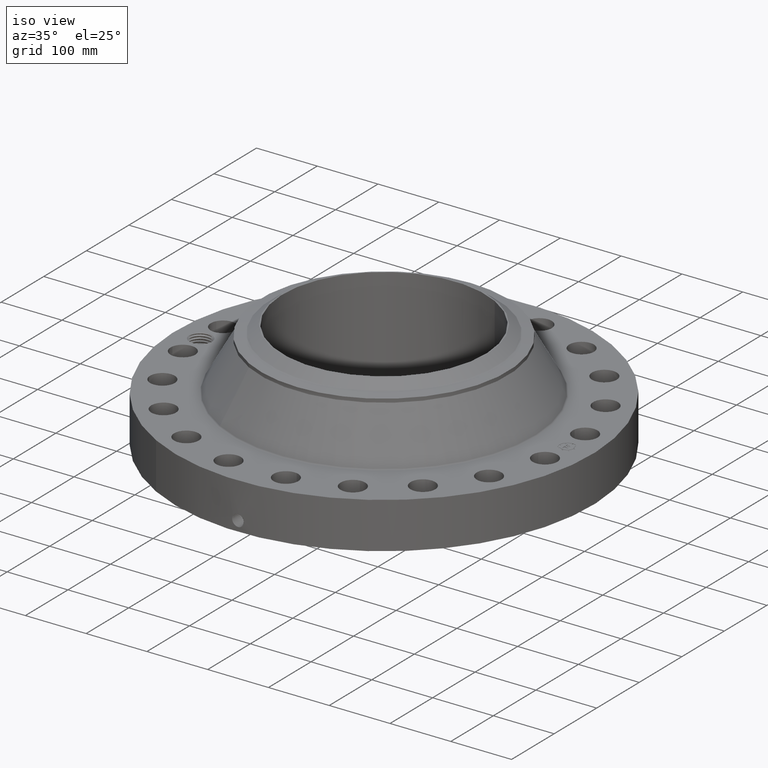
[diagram: clean part render]
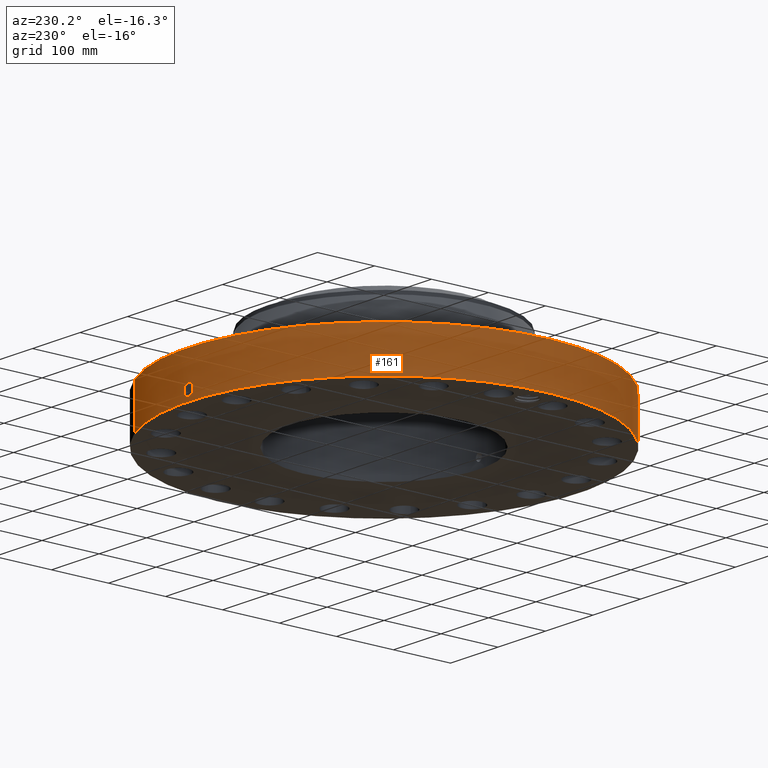
[diagram: tour spotlight — one face highlighted and labeled with its STEP entity id]
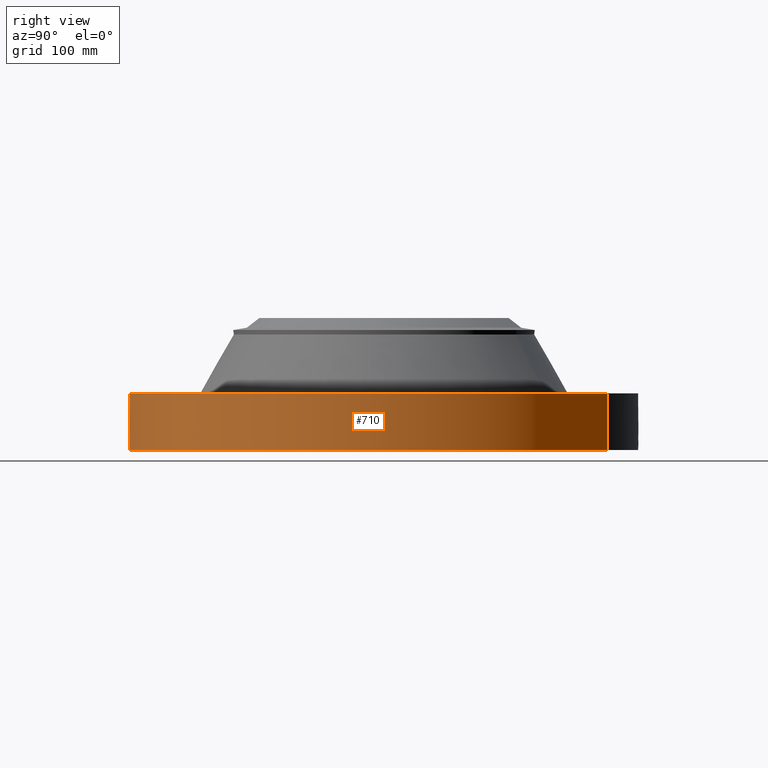
[diagram: tour spotlight — one face highlighted and labeled with its STEP entity id]
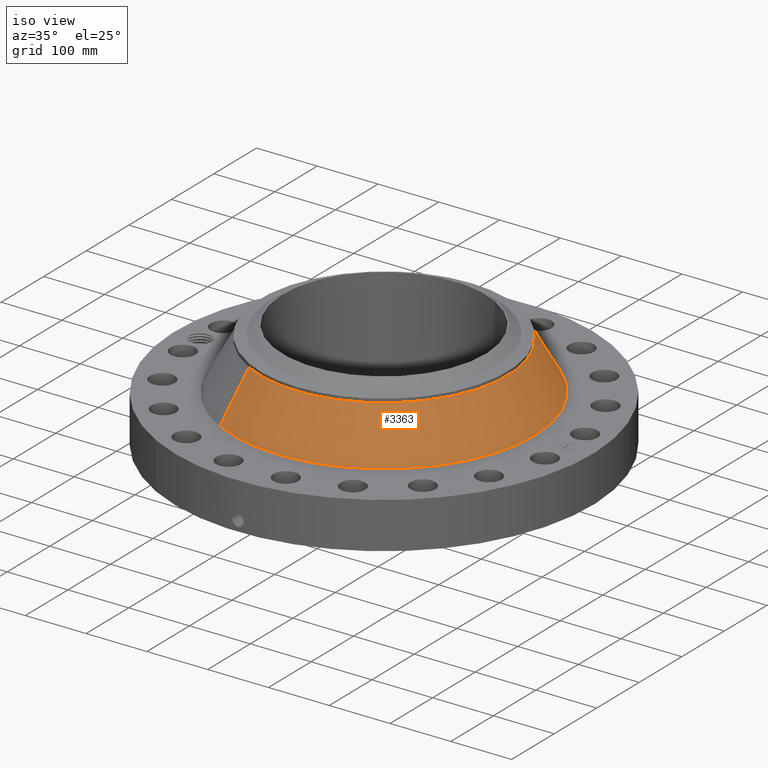
[diagram: tour spotlight — one face highlighted and labeled with its STEP entity id]
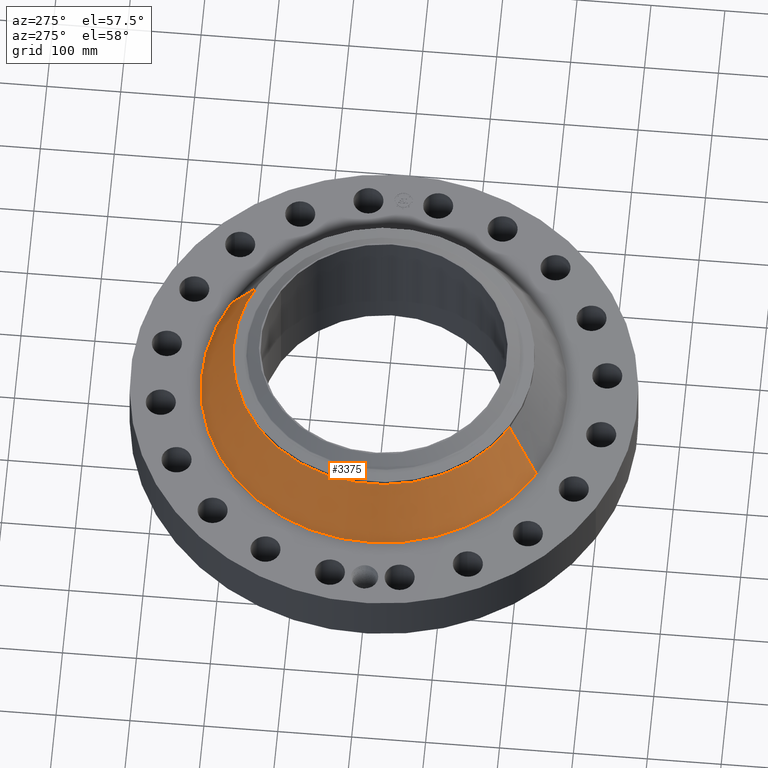
[diagram: tour spotlight — one face highlighted and labeled with its STEP entity id]
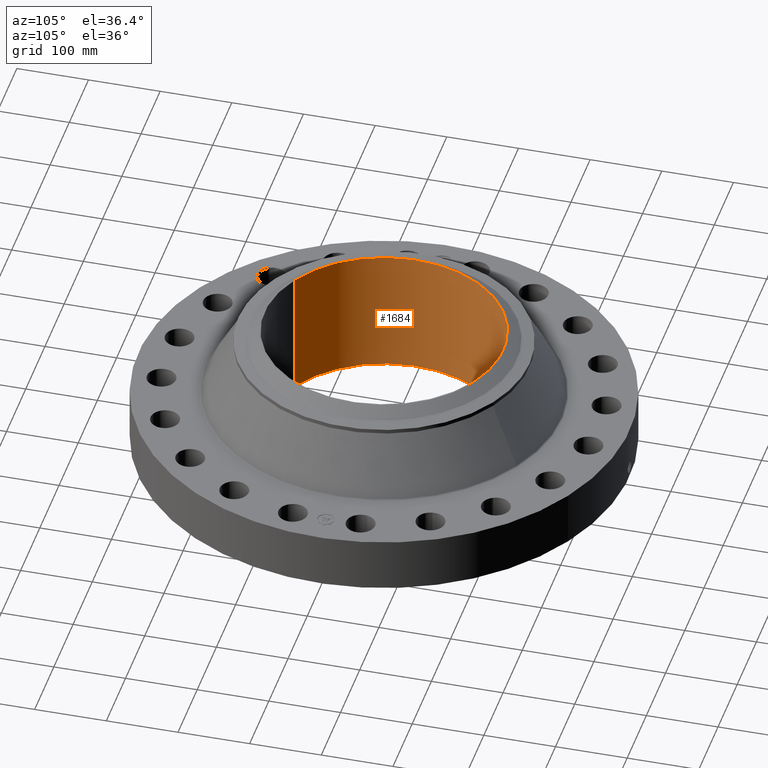
[diagram: tour spotlight — one face highlighted and labeled with its STEP entity id]
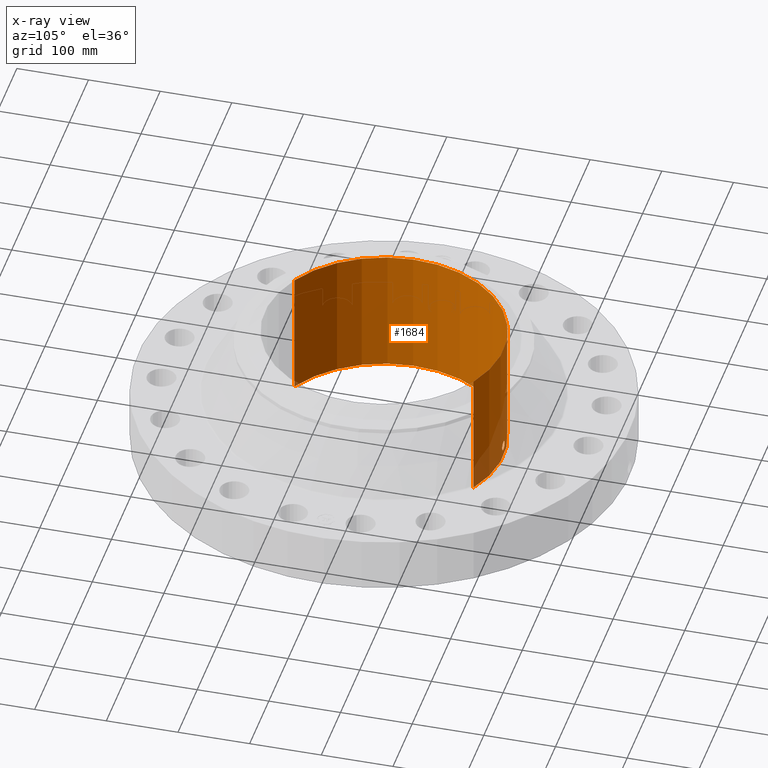
[diagram: x-ray of the same camera — body ghosted, this tour face saturated]
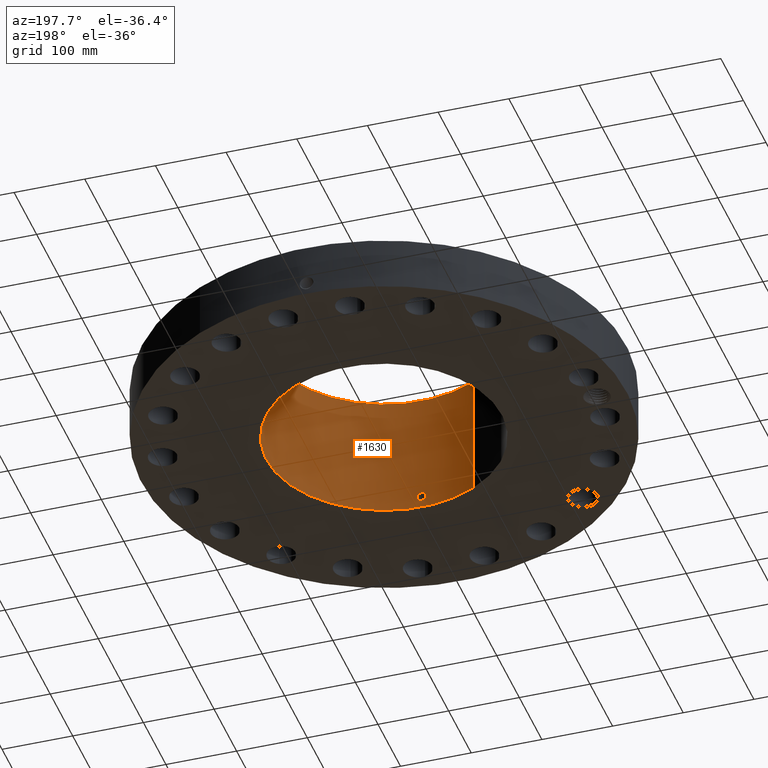
[diagram: tour spotlight — one face highlighted and labeled with its STEP entity id]
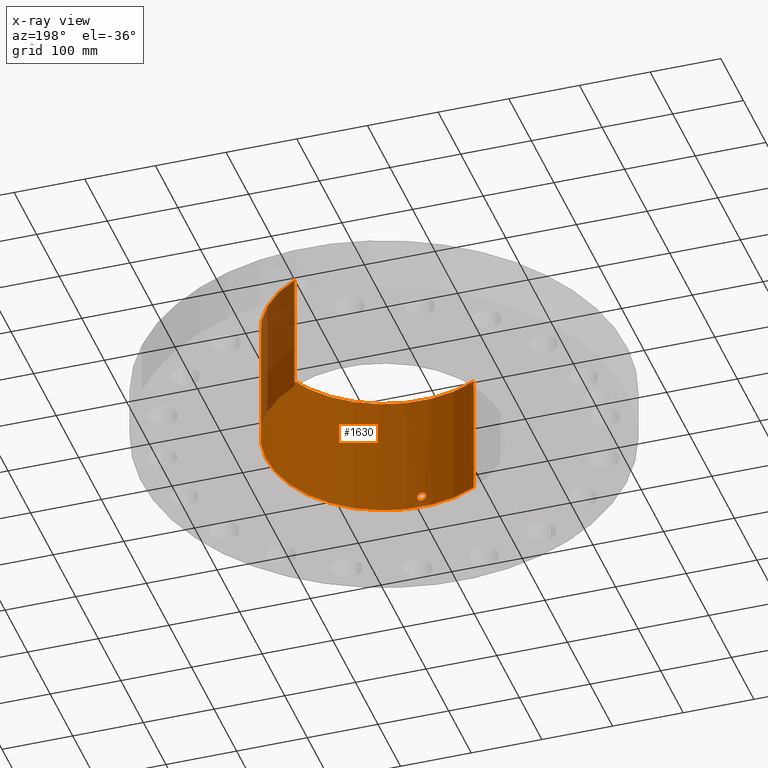
[diagram: x-ray of the same camera — body ghosted, this tour face saturated]
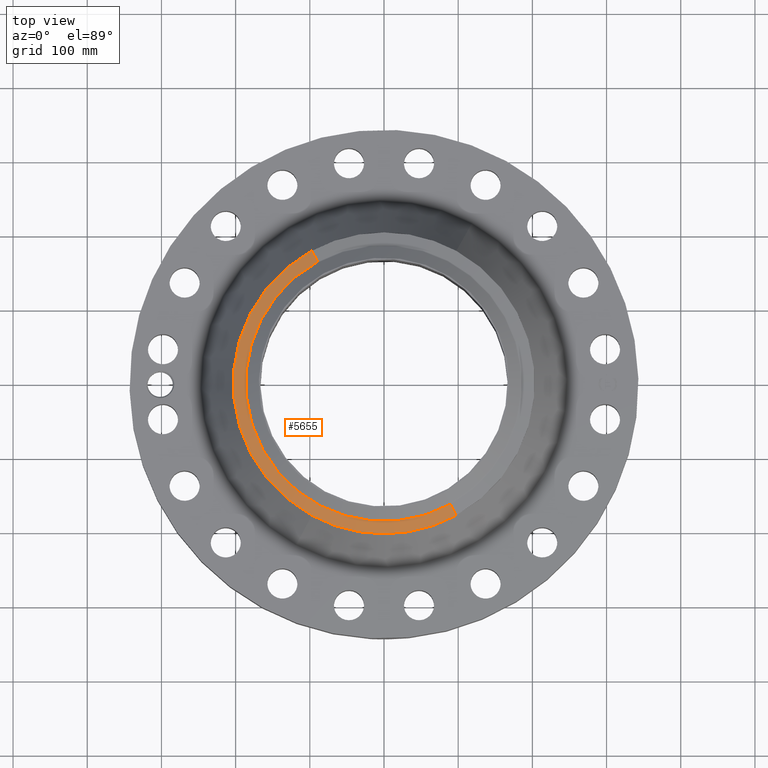
[diagram: tour spotlight — one face highlighted and labeled with its STEP entity id]
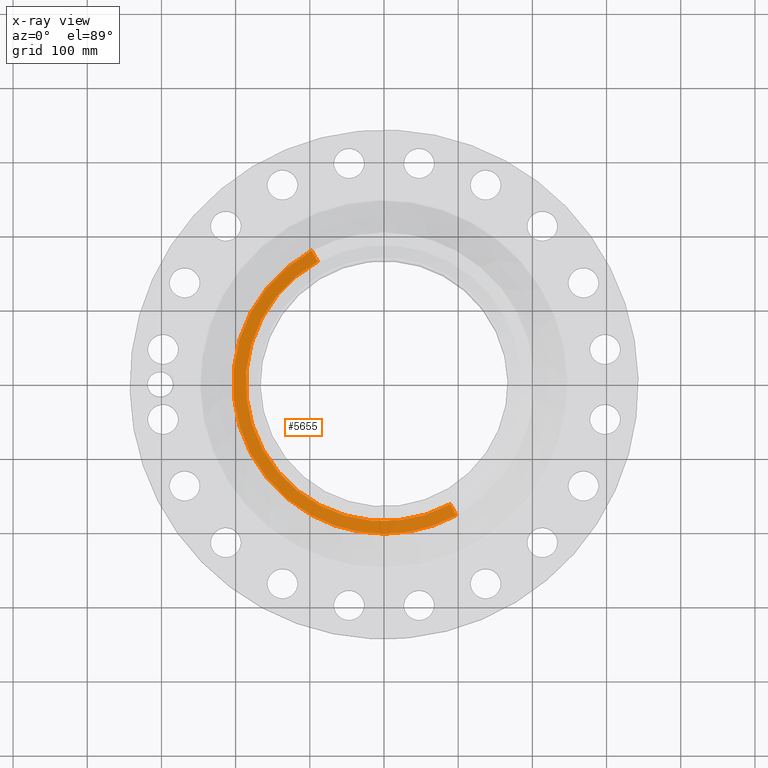
[diagram: x-ray of the same camera — body ghosted, this tour face saturated]
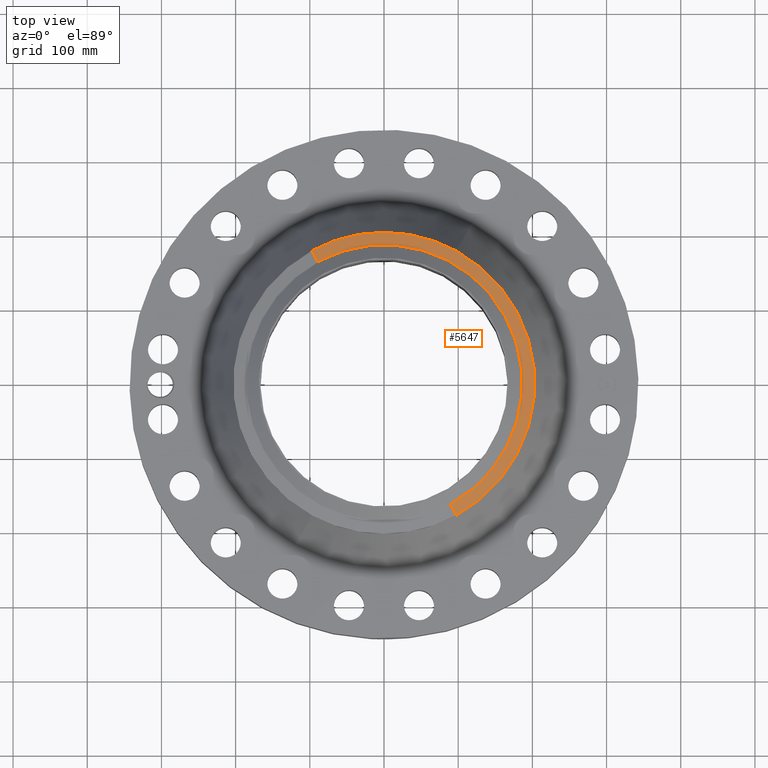
[diagram: tour spotlight — one face highlighted and labeled with its STEP entity id]
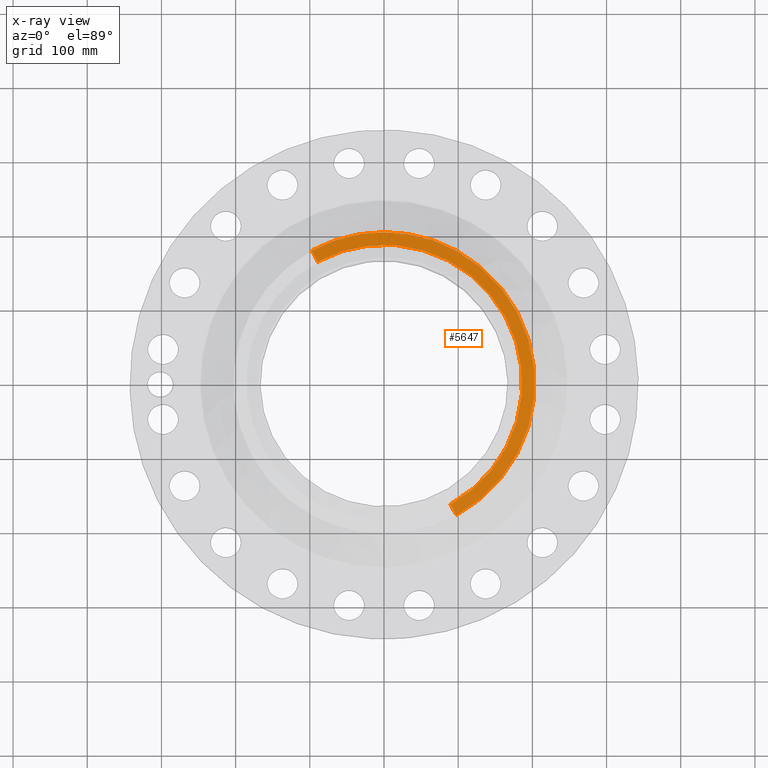
[diagram: x-ray of the same camera — body ghosted, this tour face saturated]
A machine part: a face-by-face anatomy tour. The part has 812 B-rep faces; the first image is the clean iso view, then the 8 largest visible faces are spotlighted one at a time (largest first), each with its STEP entity span.

Face 1 — auxiliary view, entity #161. In plain terms, the highlighted cylindrical surface (partial cylindrical patch) has radius 342.9 mm, axis along (0, 0, -1).
Definition (entity closure, byte-faithful):
#38=AXIS2_PLACEMENT_3D('Cylinder Axis2P3D',#35,#36,#37) ;
#42=AXIS2_PLACEMENT_3D('Circle Axis2P3D',#40,#41,$) ;
#58=AXIS2_PLACEMENT_3D('Circle Axis2P3D',#56,#57,$) ;
#35=CARTESIAN_POINT('Axis2P3D Location',(0.,0.,3.75000000001)) ;
#40=CARTESIAN_POINT('Axis2P3D Location',(0.,0.,0.250000000001)) ;
#44=CARTESIAN_POINT('Vertex',(-6.47224477118,-11.8473645856,0.250000000001)) ;
#46=CARTESIAN_POINT('Vertex',(6.47224477118,11.8473645856,0.250000000001)) ;
#49=CARTESIAN_POINT('Line Origine',(-6.47224477118,-11.8473645856,1.75000000001)) ;
#53=CARTESIAN_POINT('Vertex',(-6.47224477118,-11.8473645856,3.25000000001)) ;
#56=CARTESIAN_POINT('Axis2P3D Location',(0.,0.,3.25000000001)) ;
#60=CARTESIAN_POINT('Vertex',(6.47224477118,11.8473645856,3.25000000001)) ;
#63=CARTESIAN_POINT('Line Origine',(6.47224477118,11.8473645856,1.75000000001)) ;
#75=CARTESIAN_POINT('Control Point',(-0.000716163382717,13.4999999811,1.29411846101)) ;
#76=CARTESIAN_POINT('Control Point',(-0.0191245178311,13.4999990045,1.29408127303)) ;
#77=CARTESIAN_POINT('Control Point',(-0.0375296271128,13.4999600737,1.29260450845)) ;
#78=CARTESIAN_POINT('Control Point',(-0.0557081350738,13.499885059,1.28970628302)) ;
#79=CARTESIAN_POINT('Vertex',(-0.000715765429398,13.4999999811,1.29411851035)) ;
#81=CARTESIAN_POINT('Vertex',(-0.0556991140633,13.4998853499,1.2897077399)) ;
#85=CARTESIAN_POINT('Control Point',(-0.0556990172227,13.4998850966,1.28970718742)) ;
#86=CARTESIAN_POINT('Control Point',(-0.0959840709932,13.499718885,1.2852201931)) ;
#87=CARTESIAN_POINT('Control Point',(-0.135611733342,13.4993681539,1.27339984178)) ;
#88=CARTESIAN_POINT('Control Point',(-0.172092953459,13.4989030672,1.25504483352)) ;
#89=CARTESIAN_POINT('Vertex',(-0.172092953459,13.4989030672,1.25504483352)) ;
#93=CARTESIAN_POINT('Control Point',(-0.0308795651486,13.4999646834,0.531179134181)) ;
#94=CARTESIAN_POINT('Control Point',(-0.100086199751,13.4998063815,0.539944796107)) ;
#95=CARTESIAN_POINT('Control Point',(-0.166958153567,13.4992099387,0.56414480129)) ;
#96=CARTESIAN_POINT('Control Point',(-0.226683338792,13.4982434387,0.602956506521)) ;
#97=CARTESIAN_POINT('Control Point',(-0.299163903895,13.4967497116,0.676999413105)) ;
#98=CARTESIAN_POINT('Control Point',(-0.343960580577,13.4956272524,0.767270475586)) ;
#99=CARTESIAN_POINT('Control Point',(-0.355415042069,13.4953248078,0.797980589592)) ;
#100=CARTESIAN_POINT('Control Point',(-0.37392714434,13.4948243186,0.86927202977)) ;
#101=CARTESIAN_POINT('Control Point',(-0.375600047739,13.4947723198,0.942608272056)) ;
#102=CARTESIAN_POINT('Control Point',(-0.371220713406,13.4948971767,0.983227713877)) ;
#103=CARTESIAN_POINT('Control Point',(-0.348764792213,13.4955204271,1.07567750769)) ;
#104=CARTESIAN_POINT('Control Point',(-0.299354910034,13.4967301117,1.15705749797)) ;
#105=CARTESIAN_POINT('Control Point',(-0.262887376261,13.4975357304,1.19799125544)) ;
#106=CARTESIAN_POINT('Control Point',(-0.219691321978,13.4982962517,1.23109638715)) ;
#107=CARTESIAN_POINT('Control Point',(-0.172092953459,13.4989030672,1.25504483352)) ;
#108=CARTESIAN_POINT('Vertex',(-0.0308795651486,13.4999646834,0.531179134181)) ;
#112=CARTESIAN_POINT('Control Point',(-0.0308795651486,13.4999646834,0.531179134181)) ;
#113=CARTESIAN_POINT('Control Point',(-0.0205813206501,13.4999882394,0.53087310425)) ;
#114=CARTESIAN_POINT('Control Point',(-0.0102759877176,13.5000000021,0.530938455266)) ;
#115=CARTESIAN_POINT('Control Point',(2.72878352936E-006,13.5000000001,0.531374667805)) ;
#116=CARTESIAN_POINT('Vertex',(2.72878354247E-006,13.5000000001,0.531374667805)) ;
#120=CARTESIAN_POINT('Control Point',(0.192739114623,13.4986240645,0.587204305079)) ;
#121=CARTESIAN_POINT('Control Point',(0.149049208636,13.4992478876,0.561917453104)) ;
#122=CARTESIAN_POINT('Control Point',(0.101124622056,13.4997443844,0.543737116688)) ;
#123=CARTESIAN_POINT('Control Point',(0.0508088118478,13.4999999898,0.533530796074)) ;
#124=CARTESIAN_POINT('Control Point',(2.72878355333E-006,13.5000000001,0.531374667805)) ;
#125=CARTESIAN_POINT('Vertex',(0.192739114623,13.4986240645,0.587204305079)) ;
#129=CARTESIAN_POINT('Control Point',(0.192739114623,13.4986240645,0.587204305079)) ;
#130=CARTESIAN_POINT('Control Point',(0.249648996607,13.4978114809,0.620142612778)) ;
#131=CARTESIAN_POINT('Control Point',(0.299842664008,13.4967948198,0.664383636325)) ;
#132=CARTESIAN_POINT('Control Point',(0.34018370978,13.4957590589,0.718420983767)) ;
#133=CARTESIAN_POINT('Control Point',(0.384653582693,13.4945301676,0.81651672538)) ;
#134=CARTESIAN_POINT('Control Point',(0.393399234548,13.4942653225,0.921811048839)) ;
#135=CARTESIAN_POINT('Control Point',(0.391340684788,13.4943269928,0.961928545169)) ;
#136=CARTESIAN_POINT('Control Point',(0.377288740522,13.4947407673,1.03678247594)) ;
#137=CARTESIAN_POINT('Control Point',(0.345274775674,13.495598203,1.10517952424)) ;
#138=CARTESIAN_POINT('Control Point',(0.326249986891,13.4960822682,1.13559900311)) ;
#139=CARTESIAN_POINT('Control Point',(0.264410404339,13.4975216198,1.21232042458)) ;
#140=CARTESIAN_POINT('Control Point',(0.181070950669,13.4989559568,1.26549366882)) ;
#141=CARTESIAN_POINT('Control Point',(0.122014472913,13.4996607668,1.2876412523)) ;
#142=CARTESIAN_POINT('Control Point',(0.060523656486,13.500000116,1.2971216252)) ;
#143=CARTESIAN_POINT('Control Point',(-2.58579355266E-005,13.5,1.2941529843)) ;
#144=CARTESIAN_POINT('Vertex',(-2.58579355467E-005,13.5,1.2941529843)) ;
#148=CARTESIAN_POINT('Control Point',(-0.00071576541969,13.4999999811,1.29411851033)) ;
#149=CARTESIAN_POINT('Control Point',(-0.000370836143786,13.4999999994,1.29413607062)) ;
#150=CARTESIAN_POINT('Control Point',(-2.58579407516E-005,13.5,1.2941529843)) ;
#36=DIRECTION('Axis2P3D Direction',(0.,0.,-0.0393700787402)) ;
#37=DIRECTION('Axis2P3D XDirection',(0.0188750212049,0.0345504945626,0.)) ;
#41=DIRECTION('Axis2P3D Direction',(0.,0.,-0.0393700787402)) ;
#50=DIRECTION('Vector Direction',(0.,0.,-0.0393700787402)) ;
#57=DIRECTION('Axis2P3D Direction',(0.,0.,-0.0393700787402)) ;
#64=DIRECTION('Vector Direction',(0.,0.,-0.0393700787402)) ;
#51=VECTOR('Line Direction',#50,0.0393700787402) ;
#65=VECTOR('Line Direction',#64,0.0393700787402) ;
#69=ORIENTED_EDGE('',*,*,#48,.F.) ;
#70=ORIENTED_EDGE('',*,*,#55,.T.) ;
#71=ORIENTED_EDGE('',*,*,#62,.T.) ;
#72=ORIENTED_EDGE('',*,*,#67,.F.) ;
#153=ORIENTED_EDGE('',*,*,#83,.T.) ;
#154=ORIENTED_EDGE('',*,*,#91,.T.) ;
#155=ORIENTED_EDGE('',*,*,#110,.F.) ;
#156=ORIENTED_EDGE('',*,*,#118,.T.) ;
#157=ORIENTED_EDGE('',*,*,#127,.F.) ;
#158=ORIENTED_EDGE('',*,*,#146,.T.) ;
#159=ORIENTED_EDGE('',*,*,#151,.F.) ;
#160=FACE_BOUND('',#152,.T.) ;
#161=ADVANCED_FACE('PartBody',(#73,#160),#39,.T.) ;
#74=B_SPLINE_CURVE_WITH_KNOTS('',3,(#75,#76,#77,#78),.UNSPECIFIED.,.F.,.U.,(4,4),(34.6164904354,36.6587230498),.UNSPECIFIED.) ;
#84=B_SPLINE_CURVE_WITH_KNOTS('',3,(#85,#86,#87,#88),.UNSPECIFIED.,.F.,.U.,(4,4),(0.,4.55456924997),.UNSPECIFIED.) ;
#92=B_SPLINE_CURVE_WITH_KNOTS('',5,(#93,#94,#95,#96,#97,#98,#99,#100,#101,#102,#103,#104,#105,#106,#107),.UNSPECIFIED.,.F.,.U.,(6,3,3,3,6),(0.,12.1234786618,17.9812765769,25.3564030254,35.2605888702),.UNSPECIFIED.) ;
#111=B_SPLINE_CURVE_WITH_KNOTS('',3,(#112,#113,#114,#115),.UNSPECIFIED.,.F.,.U.,(4,4),(0.,1.07424609125),.UNSPECIFIED.) ;
#119=B_SPLINE_CURVE_WITH_KNOTS('',4,(#120,#121,#122,#123,#124),.UNSPECIFIED.,.F.,.U.,(5,5),(0.,7.0797731751),.UNSPECIFIED.) ;
#128=B_SPLINE_CURVE_WITH_KNOTS('',5,(#129,#130,#131,#132,#133,#134,#135,#136,#137,#138,#139,#140,#141,#142,#143),.UNSPECIFIED.,.F.,.U.,(6,3,3,3,6),(0.,11.5275208521,18.5881834554,24.9982058216,36.3161666141),.UNSPECIFIED.) ;
#147=B_SPLINE_CURVE_WITH_KNOTS('',2,(#148,#149,#150),.UNSPECIFIED.,.F.,.U.,(3,3),(1.02592161683,1.05171505204),.UNSPECIFIED.) ;
#43=CIRCLE('generated circle',#42,13.5000000001) ;
#59=CIRCLE('generated circle',#58,13.5000000001) ;
#39=CYLINDRICAL_SURFACE('generated cylinder',#38,13.5000000001) ;
#48=EDGE_CURVE('',#45,#47,#43,.T.) ;
#55=EDGE_CURVE('',#45,#54,#52,.F.) ;
#62=EDGE_CURVE('',#54,#61,#59,.T.) ;
#67=EDGE_CURVE('',#47,#61,#66,.F.) ;
#83=EDGE_CURVE('',#80,#82,#74,.T.) ;
#91=EDGE_CURVE('',#82,#90,#84,.T.) ;
#110=EDGE_CURVE('',#109,#90,#92,.T.) ;
#118=EDGE_CURVE('',#109,#117,#111,.T.) ;
#127=EDGE_CURVE('',#126,#117,#119,.T.) ;
#146=EDGE_CURVE('',#126,#145,#128,.T.) ;
#151=EDGE_CURVE('',#80,#145,#147,.T.) ;
#68=EDGE_LOOP('',(#69,#70,#71,#72)) ;
#152=EDGE_LOOP('',(#153,#154,#155,#156,#157,#158,#159)) ;
#73=FACE_OUTER_BOUND('',#68,.T.) ;
#52=LINE('Line',#49,#51) ;
#66=LINE('Line',#63,#65) ;
#45=VERTEX_POINT('',#44) ;
#47=VERTEX_POINT('',#46) ;
#54=VERTEX_POINT('',#53) ;
#61=VERTEX_POINT('',#60) ;
#80=VERTEX_POINT('',#79) ;
#82=VERTEX_POINT('',#81) ;
#90=VERTEX_POINT('',#89) ;
#109=VERTEX_POINT('',#108) ;
#117=VERTEX_POINT('',#116) ;
#126=VERTEX_POINT('',#125) ;
#145=VERTEX_POINT('',#144) ;

Face 2 — right view, entity #710. In plain terms, the highlighted cylindrical surface (partial cylindrical patch) has radius 342.9 mm, axis along (0, 0, -1).
Definition (entity closure, byte-faithful):
#38=AXIS2_PLACEMENT_3D('Cylinder Axis2P3D',#35,#36,#37) ;
#169=AXIS2_PLACEMENT_3D('Circle Axis2P3D',#167,#168,$) ;
#614=AXIS2_PLACEMENT_3D('Circle Axis2P3D',#612,#613,$) ;
#35=CARTESIAN_POINT('Axis2P3D Location',(0.,0.,3.75000000001)) ;
#44=CARTESIAN_POINT('Vertex',(-6.47224477118,-11.8473645856,0.250000000001)) ;
#46=CARTESIAN_POINT('Vertex',(6.47224477118,11.8473645856,0.250000000001)) ;
#49=CARTESIAN_POINT('Line Origine',(-6.47224477118,-11.8473645856,1.75000000001)) ;
#53=CARTESIAN_POINT('Vertex',(-6.47224477118,-11.8473645856,3.25000000001)) ;
#60=CARTESIAN_POINT('Vertex',(6.47224477118,11.8473645856,3.25000000001)) ;
#63=CARTESIAN_POINT('Line Origine',(6.47224477118,11.8473645856,1.75000000001)) ;
#167=CARTESIAN_POINT('Axis2P3D Location',(0.,0.,0.250000000001)) ;
#612=CARTESIAN_POINT('Axis2P3D Location',(0.,0.,3.25000000001)) ;
#624=CARTESIAN_POINT('Control Point',(0.00071616338274,-13.4999999811,1.29411846101)) ;
#625=CARTESIAN_POINT('Control Point',(0.019124517831,-13.4999990045,1.29408127303)) ;
#626=CARTESIAN_POINT('Control Point',(0.0375296271135,-13.4999600737,1.29260450845)) ;
#627=CARTESIAN_POINT('Control Point',(0.055708135073,-13.499885059,1.28970628302)) ;
#628=CARTESIAN_POINT('Vertex',(0.000715765429397,-13.4999999811,1.29411851035)) ;
#630=CARTESIAN_POINT('Vertex',(0.0556991140633,-13.4998853499,1.2897077399)) ;
#634=CARTESIAN_POINT('Control Point',(0.0556990172226,-13.4998850966,1.28970718742)) ;
#635=CARTESIAN_POINT('Control Point',(0.0959840709929,-13.499718885,1.2852201931)) ;
#636=CARTESIAN_POINT('Control Point',(0.135611733342,-13.4993681539,1.27339984178)) ;
#637=CARTESIAN_POINT('Control Point',(0.172092953459,-13.4989030672,1.25504483352)) ;
#638=CARTESIAN_POINT('Vertex',(0.172092953459,-13.4989030672,1.25504483352)) ;
#642=CARTESIAN_POINT('Control Point',(0.0308795651486,-13.4999646834,0.531179134181)) ;
#643=CARTESIAN_POINT('Control Point',(0.100086199791,-13.4998063815,0.539944796112)) ;
#644=CARTESIAN_POINT('Control Point',(0.166958153644,-13.4992099387,0.564144801325)) ;
#645=CARTESIAN_POINT('Control Point',(0.226683338662,-13.4982434387,0.602956506406)) ;
#646=CARTESIAN_POINT('Control Point',(0.299163903822,-13.4967497116,0.676999412996)) ;
#647=CARTESIAN_POINT('Control Point',(0.343960580543,-13.4956272524,0.767270475504)) ;
#648=CARTESIAN_POINT('Control Point',(0.355415042041,-13.4953248078,0.797980589506)) ;
#649=CARTESIAN_POINT('Control Point',(0.373927144315,-13.4948243186,0.869272029628)) ;
#650=CARTESIAN_POINT('Control Point',(0.375600047741,-13.4947723198,0.942608271861)) ;
#651=CARTESIAN_POINT('Control Point',(0.371220713395,-13.4948971767,0.983227713891)) ;
#652=CARTESIAN_POINT('Control Point',(0.348764792217,-13.4955204271,1.07567750767)) ;
#653=CARTESIAN_POINT('Control Point',(0.299354910071,-13.4967301117,1.15705749793)) ;
#654=CARTESIAN_POINT('Control Point',(0.262887376288,-13.4975357304,1.19799125542)) ;
#655=CARTESIAN_POINT('Control Point',(0.219691321993,-13.4982962517,1.23109638715)) ;
#656=CARTESIAN_POINT('Control Point',(0.172092953459,-13.4989030672,1.25504483352)) ;
#657=CARTESIAN_POINT('Vertex',(0.0308795651486,-13.4999646834,0.531179134181)) ;
#661=CARTESIAN_POINT('Control Point',(0.0308795651486,-13.4999646834,0.531179134181)) ;
#662=CARTESIAN_POINT('Control Point',(0.0205813206501,-13.4999882394,0.53087310425)) ;
#663=CARTESIAN_POINT('Control Point',(0.0102759877176,-13.5000000021,0.530938455266)) ;
#664=CARTESIAN_POINT('Control Point',(-2.72878351902E-006,-13.5000000001,0.531374667805)) ;
#665=CARTESIAN_POINT('Vertex',(-2.72878354408E-006,-13.5000000001,0.531374667805)) ;
#669=CARTESIAN_POINT('Control Point',(-0.192739114623,-13.4986240645,0.587204305079)) ;
#670=CARTESIAN_POINT('Control Point',(-0.149049208635,-13.4992478876,0.561917453103)) ;
#671=CARTESIAN_POINT('Control Point',(-0.101124622056,-13.4997443844,0.543737116691)) ;
#672=CARTESIAN_POINT('Control Point',(-0.0508088118491,-13.4999999898,0.533530796074)) ;
#673=CARTESIAN_POINT('Control Point',(-2.72878355499E-006,-13.5000000001,0.531374667805)) ;
#674=CARTESIAN_POINT('Vertex',(-0.192739114623,-13.4986240645,0.587204305079)) ;
#678=CARTESIAN_POINT('Control Point',(-0.192739114623,-13.4986240645,0.587204305079)) ;
#679=CARTESIAN_POINT('Control Point',(-0.249648996626,-13.4978114809,0.620142612789)) ;
#680=CARTESIAN_POINT('Control Point',(-0.299842664043,-13.4967948198,0.66438363635)) ;
#681=CARTESIAN_POINT('Control Point',(-0.340183709795,-13.4957590589,0.71842098378)) ;
#682=CARTESIAN_POINT('Control Point',(-0.384653582708,-13.4945301676,0.81651672542)) ;
#683=CARTESIAN_POINT('Control Point',(-0.393399234548,-13.4942653225,0.921811048901)) ;
#684=CARTESIAN_POINT('Control Point',(-0.391340684781,-13.4943269928,0.961928545229)) ;
#685=CARTESIAN_POINT('Control Point',(-0.377288740503,-13.4947407673,1.036782476)) ;
#686=CARTESIAN_POINT('Control Point',(-0.345274775645,-13.495598203,1.10517952429)) ;
#687=CARTESIAN_POINT('Control Point',(-0.326249986856,-13.4960822682,1.13559900316)) ;
#688=CARTESIAN_POINT('Control Point',(-0.264410404304,-13.4975216198,1.21232042461)) ;
#689=CARTESIAN_POINT('Control Point',(-0.181070950653,-13.4989559568,1.26549366882)) ;
#690=CARTESIAN_POINT('Control Point',(-0.122014472871,-13.4996607668,1.28764125231)) ;
#691=CARTESIAN_POINT('Control Point',(-0.0605236564651,-13.500000116,1.29712162519)) ;
#692=CARTESIAN_POINT('Control Point',(2.5857935561E-005,-13.5,1.2941529843)) ;
#693=CARTESIAN_POINT('Vertex',(2.58579355451E-005,-13.5,1.2941529843)) ;
#697=CARTESIAN_POINT('Control Point',(0.000715765419679,-13.4999999811,1.29411851033)) ;
#698=CARTESIAN_POINT('Control Point',(0.000370836143766,-13.4999999994,1.29413607062)) ;
#699=CARTESIAN_POINT('Control Point',(2.58579407231E-005,-13.5,1.2941529843)) ;
#36=DIRECTION('Axis2P3D Direction',(0.,0.,-0.0393700787402)) ;
#37=DIRECTION('Axis2P3D XDirection',(0.0188750212049,0.0345504945626,0.)) ;
#50=DIRECTION('Vector Direction',(0.,0.,-0.0393700787402)) ;
#64=DIRECTION('Vector Direction',(0.,0.,-0.0393700787402)) ;
#168=DIRECTION('Axis2P3D Direction',(0.,0.,-0.0393700787402)) ;
#613=DIRECTION('Axis2P3D Direction',(0.,0.,-0.0393700787402)) ;
#51=VECTOR('Line Direction',#50,0.0393700787402) ;
#65=VECTOR('Line Direction',#64,0.0393700787402) ;
#618=ORIENTED_EDGE('',*,*,#171,.F.) ;
#619=ORIENTED_EDGE('',*,*,#67,.T.) ;
#620=ORIENTED_EDGE('',*,*,#616,.T.) ;
#621=ORIENTED_EDGE('',*,*,#55,.F.) ;
#702=ORIENTED_EDGE('',*,*,#632,.T.) ;
#703=ORIENTED_EDGE('',*,*,#640,.T.) ;
#704=ORIENTED_EDGE('',*,*,#659,.F.) ;
#705=ORIENTED_EDGE('',*,*,#667,.T.) ;
#706=ORIENTED_EDGE('',*,*,#676,.F.) ;
#707=ORIENTED_EDGE('',*,*,#695,.T.) ;
#708=ORIENTED_EDGE('',*,*,#700,.F.) ;
#709=FACE_BOUND('',#701,.T.) ;
#710=ADVANCED_FACE('PartBody',(#622,#709),#39,.T.) ;
#623=B_SPLINE_CURVE_WITH_KNOTS('',3,(#624,#625,#626,#627),.UNSPECIFIED.,.F.,.U.,(4,4),(34.6164904467,36.6587230611),.UNSPECIFIED.) ;
#633=B_SPLINE_CURVE_WITH_KNOTS('',3,(#634,#635,#636,#637),.UNSPECIFIED.,.F.,.U.,(4,4),(0.,4.55456924994),.UNSPECIFIED.) ;
#641=B_SPLINE_CURVE_WITH_KNOTS('',5,(#642,#643,#644,#645,#646,#647,#648,#649,#650,#651,#652,#653,#654,#655,#656),.UNSPECIFIED.,.F.,.U.,(6,3,3,3,6),(0.,12.1234786689,17.981276584,25.356403023,35.2605888709),.UNSPECIFIED.) ;
#660=B_SPLINE_CURVE_WITH_KNOTS('',3,(#661,#662,#663,#664),.UNSPECIFIED.,.F.,.U.,(4,4),(0.,1.07424609125),.UNSPECIFIED.) ;
#668=B_SPLINE_CURVE_WITH_KNOTS('',4,(#669,#670,#671,#672,#673),.UNSPECIFIED.,.F.,.U.,(5,5),(0.,7.07977317527),.UNSPECIFIED.) ;
#677=B_SPLINE_CURVE_WITH_KNOTS('',5,(#678,#679,#680,#681,#682,#683,#684,#685,#686,#687,#688,#689,#690,#691,#692),.UNSPECIFIED.,.F.,.U.,(6,3,3,3,6),(0.,11.5275208559,18.5881834592,24.9982058253,36.3161666139),.UNSPECIFIED.) ;
#696=B_SPLINE_CURVE_WITH_KNOTS('',2,(#697,#698,#699),.UNSPECIFIED.,.F.,.U.,(3,3),(1.02592161683,1.05171505204),.UNSPECIFIED.) ;
#170=CIRCLE('generated circle',#169,13.5000000001) ;
#615=CIRCLE('generated circle',#614,13.5000000001) ;
#39=CYLINDRICAL_SURFACE('generated cylinder',#38,13.5000000001) ;
#55=EDGE_CURVE('',#45,#54,#52,.F.) ;
#67=EDGE_CURVE('',#47,#61,#66,.F.) ;
#171=EDGE_CURVE('',#47,#45,#170,.T.) ;
#616=EDGE_CURVE('',#61,#54,#615,.T.) ;
#632=EDGE_CURVE('',#629,#631,#623,.T.) ;
#640=EDGE_CURVE('',#631,#639,#633,.T.) ;
#659=EDGE_CURVE('',#658,#639,#641,.T.) ;
#667=EDGE_CURVE('',#658,#666,#660,.T.) ;
#676=EDGE_CURVE('',#675,#666,#668,.T.) ;
#695=EDGE_CURVE('',#675,#694,#677,.T.) ;
#700=EDGE_CURVE('',#629,#694,#696,.T.) ;
#617=EDGE_LOOP('',(#618,#619,#620,#621)) ;
#701=EDGE_LOOP('',(#702,#703,#704,#705,#706,#707,#708)) ;
#622=FACE_OUTER_BOUND('',#617,.T.) ;
#52=LINE('Line',#49,#51) ;
#66=LINE('Line',#63,#65) ;
#45=VERTEX_POINT('',#44) ;
#47=VERTEX_POINT('',#46) ;
#54=VERTEX_POINT('',#53) ;
#61=VERTEX_POINT('',#60) ;
#629=VERTEX_POINT('',#628) ;
#631=VERTEX_POINT('',#630) ;
#639=VERTEX_POINT('',#638) ;
#658=VERTEX_POINT('',#657) ;
#666=VERTEX_POINT('',#665) ;
#675=VERTEX_POINT('',#674) ;
#694=VERTEX_POINT('',#693) ;

Face 3 — iso view, entity #3363. In plain terms, the highlighted conical surface has half-angle 29.221 deg.
Definition (entity closure, byte-faithful):
#2622=AXIS2_PLACEMENT_3D('Circle Axis2P3D',#2620,#2621,$) ;
#3336=AXIS2_PLACEMENT_3D('Cone Axis2P3D',#3333,#3334,#3335) ;
#3347=AXIS2_PLACEMENT_3D('Circle Axis2P3D',#3345,#3346,$) ;
#2617=CARTESIAN_POINT('Vertex',(4.65792824697,8.52628046469,3.31141832333)) ;
#2620=CARTESIAN_POINT('Axis2P3D Location',(0.,0.,3.31141832333)) ;
#2624=CARTESIAN_POINT('Vertex',(-4.65792824697,-8.52628046469,3.31141832333)) ;
#3333=CARTESIAN_POINT('Axis2P3D Location',(0.,0.,6.37855415759)) ;
#3338=CARTESIAN_POINT('Line Origine',(4.24666627791,7.77347047992,4.84498624046)) ;
#3342=CARTESIAN_POINT('Vertex',(3.83540430885,7.02066049515,6.37855415759)) ;
#3345=CARTESIAN_POINT('Axis2P3D Location',(0.,0.,6.37855415759)) ;
#3349=CARTESIAN_POINT('Vertex',(-3.83540430885,-7.02066049515,6.37855415759)) ;
#3352=CARTESIAN_POINT('Line Origine',(-4.24666627791,-7.77347047992,4.84498624046)) ;
#2621=DIRECTION('Axis2P3D Direction',(0.,0.,-0.0393700787402)) ;
#3334=DIRECTION('Axis2P3D Direction',(0.,0.,-0.0393700787402)) ;
#3335=DIRECTION('Axis2P3D XDirection',(-0.0188750212049,-0.0345504945626,0.)) ;
#3339=DIRECTION('Vector Direction',(0.00921441991345,0.0168668825143,-0.0343599452839)) ;
#3346=DIRECTION('Axis2P3D Direction',(0.,0.,-0.0393700787402)) ;
#3353=DIRECTION('Vector Direction',(-0.00921441991345,-0.0168668825143,-0.0343599452839)) ;
#3340=VECTOR('Line Direction',#3339,0.0393700787402) ;
#3354=VECTOR('Line Direction',#3353,0.0393700787402) ;
#3358=ORIENTED_EDGE('',*,*,#2626,.F.) ;
#3359=ORIENTED_EDGE('',*,*,#3344,.T.) ;
#3360=ORIENTED_EDGE('',*,*,#3351,.T.) ;
#3361=ORIENTED_EDGE('',*,*,#3356,.F.) ;
#3363=ADVANCED_FACE('PartBody',(#3362),#3337,.T.) ;
#2623=CIRCLE('generated circle',#2622,9.71564481218) ;
#3348=CIRCLE('generated circle',#3347,8.00000000003) ;
#3337=CONICAL_SURFACE('Cone',#3336,8.00000000003,0.510003886759) ;
#2626=EDGE_CURVE('',#2618,#2625,#2623,.T.) ;
#3344=EDGE_CURVE('',#2618,#3343,#3341,.F.) ;
#3351=EDGE_CURVE('',#3343,#3350,#3348,.T.) ;
#3356=EDGE_CURVE('',#2625,#3350,#3355,.F.) ;
#3357=EDGE_LOOP('',(#3358,#3359,#3360,#3361)) ;
#3362=FACE_OUTER_BOUND('',#3357,.T.) ;
#3341=LINE('Line',#3338,#3340) ;
#3355=LINE('Line',#3352,#3354) ;
#2618=VERTEX_POINT('',#2617) ;
#2625=VERTEX_POINT('',#2624) ;
#3343=VERTEX_POINT('',#3342) ;
#3350=VERTEX_POINT('',#3349) ;

Face 4 — auxiliary view, entity #3375. In plain terms, the highlighted conical surface has half-angle 29.221 deg.
Definition (entity closure, byte-faithful):
#2641=AXIS2_PLACEMENT_3D('Circle Axis2P3D',#2639,#2640,$) ;
#3336=AXIS2_PLACEMENT_3D('Cone Axis2P3D',#3333,#3334,#3335) ;
#3366=AXIS2_PLACEMENT_3D('Circle Axis2P3D',#3364,#3365,$) ;
#2617=CARTESIAN_POINT('Vertex',(4.65792824697,8.52628046469,3.31141832333)) ;
#2624=CARTESIAN_POINT('Vertex',(-4.65792824697,-8.52628046469,3.31141832333)) ;
#2639=CARTESIAN_POINT('Axis2P3D Location',(0.,0.,3.31141832333)) ;
#3333=CARTESIAN_POINT('Axis2P3D Location',(0.,0.,6.37855415759)) ;
#3338=CARTESIAN_POINT('Line Origine',(4.24666627791,7.77347047992,4.84498624046)) ;
#3342=CARTESIAN_POINT('Vertex',(3.83540430885,7.02066049515,6.37855415759)) ;
#3349=CARTESIAN_POINT('Vertex',(-3.83540430885,-7.02066049515,6.37855415759)) ;
#3352=CARTESIAN_POINT('Line Origine',(-4.24666627791,-7.77347047992,4.84498624046)) ;
#3364=CARTESIAN_POINT('Axis2P3D Location',(0.,0.,6.37855415759)) ;
#2640=DIRECTION('Axis2P3D Direction',(0.,0.,-0.0393700787402)) ;
#3334=DIRECTION('Axis2P3D Direction',(0.,0.,-0.0393700787402)) ;
#3335=DIRECTION('Axis2P3D XDirection',(-0.0188750212049,-0.0345504945626,0.)) ;
#3339=DIRECTION('Vector Direction',(0.00921441991345,0.0168668825143,-0.0343599452839)) ;
#3353=DIRECTION('Vector Direction',(-0.00921441991345,-0.0168668825143,-0.0343599452839)) ;
#3365=DIRECTION('Axis2P3D Direction',(0.,0.,-0.0393700787402)) ;
#3340=VECTOR('Line Direction',#3339,0.0393700787402) ;
#3354=VECTOR('Line Direction',#3353,0.0393700787402) ;
#3370=ORIENTED_EDGE('',*,*,#2643,.F.) ;
#3371=ORIENTED_EDGE('',*,*,#3356,.T.) ;
#3372=ORIENTED_EDGE('',*,*,#3368,.T.) ;
#3373=ORIENTED_EDGE('',*,*,#3344,.F.) ;
#3375=ADVANCED_FACE('PartBody',(#3374),#3337,.T.) ;
#2642=CIRCLE('generated circle',#2641,9.71564481218) ;
#3367=CIRCLE('generated circle',#3366,8.00000000003) ;
#3337=CONICAL_SURFACE('Cone',#3336,8.00000000003,0.510003886759) ;
#2643=EDGE_CURVE('',#2625,#2618,#2642,.T.) ;
#3344=EDGE_CURVE('',#2618,#3343,#3341,.F.) ;
#3356=EDGE_CURVE('',#2625,#3350,#3355,.F.) ;
#3368=EDGE_CURVE('',#3350,#3343,#3367,.T.) ;
#3369=EDGE_LOOP('',(#3370,#3371,#3372,#3373)) ;
#3374=FACE_OUTER_BOUND('',#3369,.T.) ;
#3341=LINE('Line',#3338,#3340) ;
#3355=LINE('Line',#3352,#3354) ;
#2618=VERTEX_POINT('',#2617) ;
#2625=VERTEX_POINT('',#2624) ;
#3343=VERTEX_POINT('',#3342) ;
#3350=VERTEX_POINT('',#3349) ;

Face 5 — auxiliary view, entity #1684. An x-ray twin of the same camera follows (body ghosted, this face saturated) — the face is partly hidden behind the body. In plain terms, the highlighted cylindrical surface (partial cylindrical patch) has radius 166.675 mm, axis along (0, 0, -1).
Definition (entity closure, byte-faithful):
#262=AXIS2_PLACEMENT_3D('Circle Axis2P3D',#260,#261,$) ;
#1561=AXIS2_PLACEMENT_3D('Cylinder Axis2P3D',#1558,#1559,#1560) ;
#1633=AXIS2_PLACEMENT_3D('Circle Axis2P3D',#1631,#1632,$) ;
#255=CARTESIAN_POINT('Vertex',(3.14599038433,5.75869677115,0.250000000001)) ;
#257=CARTESIAN_POINT('Vertex',(-3.14599038433,-5.75869677115,0.250000000001)) ;
#260=CARTESIAN_POINT('Axis2P3D Location',(0.,0.,0.250000000001)) ;
#1558=CARTESIAN_POINT('Axis2P3D Location',(0.,0.,3.75000000001)) ;
#1567=CARTESIAN_POINT('Vertex',(3.14599038433,5.75869677115,7.25000000003)) ;
#1569=CARTESIAN_POINT('Vertex',(-3.14599038433,-5.75869677115,7.25000000003)) ;
#1572=CARTESIAN_POINT('Line Origine',(3.14599038433,5.75869677115,3.75000000001)) ;
#1577=CARTESIAN_POINT('Line Origine',(-3.14599038433,-5.75869677115,3.75000000001)) ;
#1631=CARTESIAN_POINT('Axis2P3D Location',(0.,0.,7.25000000003)) ;
#1643=CARTESIAN_POINT('Control Point',(0.219395640473,6.55833130859,1.05985638466)) ;
#1644=CARTESIAN_POINT('Control Point',(0.194443746505,6.55916602348,1.1055305202)) ;
#1645=CARTESIAN_POINT('Control Point',(0.157608388763,6.5602794774,1.14470750987)) ;
#1646=CARTESIAN_POINT('Control Point',(0.111116051395,6.56136220696,1.17323971736)) ;
#1647=CARTESIAN_POINT('Control Point',(0.0336838252798,6.56222372727,1.19588106186)) ;
#1648=CARTESIAN_POINT('Control Point',(-0.044659411302,6.56192615909,1.18805797047)) ;
#1649=CARTESIAN_POINT('Control Point',(-0.0702858740981,6.56169514434,1.18204744065)) ;
#1650=CARTESIAN_POINT('Control Point',(-0.143937919854,6.56067414456,1.154222907)) ;
#1651=CARTESIAN_POINT('Control Point',(-0.203222789784,6.5590072782,1.09952181958)) ;
#1652=CARTESIAN_POINT('Control Point',(-0.232192730169,6.55791360884,1.05329240275)) ;
#1653=CARTESIAN_POINT('Control Point',(-0.255837627341,6.55701402292,0.97514186529)) ;
#1654=CARTESIAN_POINT('Control Point',(-0.248287889248,6.55730101884,0.895767718806)) ;
#1655=CARTESIAN_POINT('Control Point',(-0.242053991269,6.55754145354,0.869197045362)) ;
#1656=CARTESIAN_POINT('Control Point',(-0.232318615288,6.55789899674,0.843798962079)) ;
#1657=CARTESIAN_POINT('Control Point',(-0.219395640473,6.55833130859,0.820143615352)) ;
#1658=CARTESIAN_POINT('Vertex',(0.219395640473,6.55833130859,1.05985638466)) ;
#1660=CARTESIAN_POINT('Vertex',(-0.219395640473,6.55833130859,0.820143615352)) ;
#1664=CARTESIAN_POINT('Control Point',(-0.219395640473,6.55833130859,0.820143615352)) ;
#1665=CARTESIAN_POINT('Control Point',(-0.194443746499,6.55916602348,0.774469479799)) ;
#1666=CARTESIAN_POINT('Control Point',(-0.157608388747,6.5602794774,0.735292490119)) ;
#1667=CARTESIAN_POINT('Control Point',(-0.111116051417,6.56136220696,0.706760282652)) ;
#1668=CARTESIAN_POINT('Control Point',(-0.033683825289,6.56222372727,0.684118938142)) ;
#1669=CARTESIAN_POINT('Control Point',(0.0446594113063,6.56192615909,0.691942029537)) ;
#1670=CARTESIAN_POINT('Control Point',(0.0702858740952,6.56169514434,0.697952559358)) ;
#1671=CARTESIAN_POINT('Control Point',(0.143937919869,6.56067414456,0.72577709301)) ;
#1672=CARTESIAN_POINT('Control Point',(0.203222789809,6.5590072782,0.780478180451)) ;
#1673=CARTESIAN_POINT('Control Point',(0.232192730159,6.55791360884,0.82670759723)) ;
#1674=CARTESIAN_POINT('Control Point',(0.255837627343,6.55701402292,0.904858134702)) ;
#1675=CARTESIAN_POINT('Control Point',(0.248287889248,6.55730101884,0.984232281203)) ;
#1676=CARTESIAN_POINT('Control Point',(0.242053991269,6.55754145354,1.01080295465)) ;
#1677=CARTESIAN_POINT('Control Point',(0.232318615289,6.55789899674,1.03620103793)) ;
#1678=CARTESIAN_POINT('Control Point',(0.219395640473,6.55833130859,1.05985638466)) ;
#261=DIRECTION('Axis2P3D Direction',(0.,0.,-0.0393700787402)) ;
#1559=DIRECTION('Axis2P3D Direction',(0.,0.,-0.0393700787402)) ;
#1560=DIRECTION('Axis2P3D XDirection',(-0.0188750212049,-0.0345504945626,0.)) ;
#1573=DIRECTION('Vector Direction',(0.,0.,-0.0393700787402)) ;
#1578=DIRECTION('Vector Direction',(0.,0.,-0.0393700787402)) ;
#1632=DIRECTION('Axis2P3D Direction',(0.,0.,-0.0393700787402)) ;
#1574=VECTOR('Line Direction',#1573,0.0393700787402) ;
#1579=VECTOR('Line Direction',#1578,0.0393700787402) ;
#1637=ORIENTED_EDGE('',*,*,#1635,.F.) ;
#1638=ORIENTED_EDGE('',*,*,#1581,.T.) ;
#1639=ORIENTED_EDGE('',*,*,#264,.T.) ;
#1640=ORIENTED_EDGE('',*,*,#1576,.F.) ;
#1681=ORIENTED_EDGE('',*,*,#1662,.F.) ;
#1682=ORIENTED_EDGE('',*,*,#1679,.F.) ;
#1683=FACE_BOUND('',#1680,.T.) ;
#1684=ADVANCED_FACE('PartBody',(#1641,#1683),#1562,.F.) ;
#1642=B_SPLINE_CURVE_WITH_KNOTS('',5,(#1643,#1644,#1645,#1646,#1647,#1648,#1649,#1650,#1651,#1652,#1653,#1654,#1655,#1656,#1657),.UNSPECIFIED.,.F.,.U.,(6,3,3,3,6),(0.,9.34882259334,14.0225699871,23.3725865472,28.2144874896),.UNSPECIFIED.) ;
#1663=B_SPLINE_CURVE_WITH_KNOTS('',5,(#1664,#1665,#1666,#1667,#1668,#1669,#1670,#1671,#1672,#1673,#1674,#1675,#1676,#1677,#1678),.UNSPECIFIED.,.F.,.U.,(6,3,3,3,6),(0.,9.34882259542,14.0225699895,23.3725865525,28.2144874951),.UNSPECIFIED.) ;
#263=CIRCLE('generated circle',#262,6.56200000003) ;
#1634=CIRCLE('generated circle',#1633,6.56200000003) ;
#1562=CYLINDRICAL_SURFACE('generated cylinder',#1561,6.56200000003) ;
#264=EDGE_CURVE('',#258,#256,#263,.T.) ;
#1576=EDGE_CURVE('',#1568,#256,#1575,.T.) ;
#1581=EDGE_CURVE('',#1570,#258,#1580,.T.) ;
#1635=EDGE_CURVE('',#1570,#1568,#1634,.T.) ;
#1662=EDGE_CURVE('',#1659,#1661,#1642,.T.) ;
#1679=EDGE_CURVE('',#1661,#1659,#1663,.T.) ;
#1636=EDGE_LOOP('',(#1637,#1638,#1639,#1640)) ;
#1680=EDGE_LOOP('',(#1681,#1682)) ;
#1641=FACE_OUTER_BOUND('',#1636,.T.) ;
#1575=LINE('Line',#1572,#1574) ;
#1580=LINE('Line',#1577,#1579) ;
#256=VERTEX_POINT('',#255) ;
#258=VERTEX_POINT('',#257) ;
#1568=VERTEX_POINT('',#1567) ;
#1570=VERTEX_POINT('',#1569) ;
#1659=VERTEX_POINT('',#1658) ;
#1661=VERTEX_POINT('',#1660) ;

Face 6 — auxiliary view, entity #1630. An x-ray twin of the same camera follows (body ghosted, this face saturated) — the face is partly hidden behind the body. In plain terms, the highlighted cylindrical surface (partial cylindrical patch) has radius 166.675 mm, axis along (0, 0, -1).
Definition (entity closure, byte-faithful):
#253=AXIS2_PLACEMENT_3D('Circle Axis2P3D',#251,#252,$) ;
#1561=AXIS2_PLACEMENT_3D('Cylinder Axis2P3D',#1558,#1559,#1560) ;
#1565=AXIS2_PLACEMENT_3D('Circle Axis2P3D',#1563,#1564,$) ;
#251=CARTESIAN_POINT('Axis2P3D Location',(0.,0.,0.250000000001)) ;
#255=CARTESIAN_POINT('Vertex',(3.14599038433,5.75869677115,0.250000000001)) ;
#257=CARTESIAN_POINT('Vertex',(-3.14599038433,-5.75869677115,0.250000000001)) ;
#1558=CARTESIAN_POINT('Axis2P3D Location',(0.,0.,3.75000000001)) ;
#1563=CARTESIAN_POINT('Axis2P3D Location',(0.,0.,7.25000000003)) ;
#1567=CARTESIAN_POINT('Vertex',(3.14599038433,5.75869677115,7.25000000003)) ;
#1569=CARTESIAN_POINT('Vertex',(-3.14599038433,-5.75869677115,7.25000000003)) ;
#1572=CARTESIAN_POINT('Line Origine',(3.14599038433,5.75869677115,3.75000000001)) ;
#1577=CARTESIAN_POINT('Line Origine',(-3.14599038433,-5.75869677115,3.75000000001)) ;
#1589=CARTESIAN_POINT('Control Point',(0.219395640473,-6.55833130859,0.820143615352)) ;
#1590=CARTESIAN_POINT('Control Point',(0.194443746499,-6.55916602348,0.774469479799)) ;
#1591=CARTESIAN_POINT('Control Point',(0.157608388747,-6.5602794774,0.73529249012)) ;
#1592=CARTESIAN_POINT('Control Point',(0.111116051417,-6.56136220696,0.706760282653)) ;
#1593=CARTESIAN_POINT('Control Point',(0.0336838252861,-6.56222372727,0.684118938141)) ;
#1594=CARTESIAN_POINT('Control Point',(-0.0446594113117,-6.56192615909,0.691942029538)) ;
#1595=CARTESIAN_POINT('Control Point',(-0.070285874089,-6.56169514434,0.697952559356)) ;
#1596=CARTESIAN_POINT('Control Point',(-0.143937919847,-6.56067414456,0.725777093001)) ;
#1597=CARTESIAN_POINT('Control Point',(-0.203222789779,-6.5590072782,0.780478180423)) ;
#1598=CARTESIAN_POINT('Control Point',(-0.232192730171,-6.55791360884,0.826707597269)) ;
#1599=CARTESIAN_POINT('Control Point',(-0.255837627341,-6.55701402292,0.904858134721)) ;
#1600=CARTESIAN_POINT('Control Point',(-0.248287889248,-6.55730101884,0.984232281203)) ;
#1601=CARTESIAN_POINT('Control Point',(-0.242053991269,-6.55754145354,1.01080295464)) ;
#1602=CARTESIAN_POINT('Control Point',(-0.232318615289,-6.55789899674,1.03620103793)) ;
#1603=CARTESIAN_POINT('Control Point',(-0.219395640473,-6.55833130859,1.05985638466)) ;
#1604=CARTESIAN_POINT('Vertex',(0.219395640473,-6.55833130859,0.820143615352)) ;
#1606=CARTESIAN_POINT('Vertex',(-0.219395640473,-6.55833130859,1.05985638466)) ;
#1610=CARTESIAN_POINT('Control Point',(-0.219395640473,-6.55833130859,1.05985638466)) ;
#1611=CARTESIAN_POINT('Control Point',(-0.194443746505,-6.55916602348,1.1055305202)) ;
#1612=CARTESIAN_POINT('Control Point',(-0.157608388762,-6.5602794774,1.14470750987)) ;
#1613=CARTESIAN_POINT('Control Point',(-0.111116051399,-6.56136220696,1.17323971736)) ;
#1614=CARTESIAN_POINT('Control Point',(-0.0336838252779,-6.56222372727,1.19588106187)) ;
#1615=CARTESIAN_POINT('Control Point',(0.0446594113103,-6.56192615909,1.18805797047)) ;
#1616=CARTESIAN_POINT('Control Point',(0.0702858740833,-6.56169514434,1.18204744065)) ;
#1617=CARTESIAN_POINT('Control Point',(0.143937919807,-6.56067414456,1.15422290702)) ;
#1618=CARTESIAN_POINT('Control Point',(0.203222789718,-6.55900727821,1.09952181964)) ;
#1619=CARTESIAN_POINT('Control Point',(0.232192730192,-6.55791360884,1.05329240267)) ;
#1620=CARTESIAN_POINT('Control Point',(0.255837627342,-6.55701402292,0.975141865236)) ;
#1621=CARTESIAN_POINT('Control Point',(0.248287889245,-6.55730101884,0.895767718778)) ;
#1622=CARTESIAN_POINT('Control Point',(0.24205399128,-6.55754145354,0.869197045391)) ;
#1623=CARTESIAN_POINT('Control Point',(0.232318615296,-6.55789899674,0.843798962093)) ;
#1624=CARTESIAN_POINT('Control Point',(0.219395640473,-6.55833130859,0.820143615352)) ;
#252=DIRECTION('Axis2P3D Direction',(0.,0.,-0.0393700787402)) ;
#1559=DIRECTION('Axis2P3D Direction',(0.,0.,-0.0393700787402)) ;
#1560=DIRECTION('Axis2P3D XDirection',(-0.0188750212049,-0.0345504945626,0.)) ;
#1564=DIRECTION('Axis2P3D Direction',(0.,0.,-0.0393700787402)) ;
#1573=DIRECTION('Vector Direction',(0.,0.,-0.0393700787402)) ;
#1578=DIRECTION('Vector Direction',(0.,0.,-0.0393700787402)) ;
#1574=VECTOR('Line Direction',#1573,0.0393700787402) ;
#1579=VECTOR('Line Direction',#1578,0.0393700787402) ;
#1583=ORIENTED_EDGE('',*,*,#1571,.F.) ;
#1584=ORIENTED_EDGE('',*,*,#1576,.T.) ;
#1585=ORIENTED_EDGE('',*,*,#259,.T.) ;
#1586=ORIENTED_EDGE('',*,*,#1581,.F.) ;
#1627=ORIENTED_EDGE('',*,*,#1608,.F.) ;
#1628=ORIENTED_EDGE('',*,*,#1625,.F.) ;
#1629=FACE_BOUND('',#1626,.T.) ;
#1630=ADVANCED_FACE('PartBody',(#1587,#1629),#1562,.F.) ;
#1588=B_SPLINE_CURVE_WITH_KNOTS('',5,(#1589,#1590,#1591,#1592,#1593,#1594,#1595,#1596,#1597,#1598,#1599,#1600,#1601,#1602,#1603),.UNSPECIFIED.,.F.,.U.,(6,3,3,3,6),(0.,9.34882259533,14.0225699899,23.3725865494,28.214487492),.UNSPECIFIED.) ;
#1609=B_SPLINE_CURVE_WITH_KNOTS('',5,(#1610,#1611,#1612,#1613,#1614,#1615,#1616,#1617,#1618,#1619,#1620,#1621,#1622,#1623,#1624),.UNSPECIFIED.,.F.,.U.,(6,3,3,3,6),(0.,9.3488225934,14.0225699882,23.3725865407,28.214487486),.UNSPECIFIED.) ;
#254=CIRCLE('generated circle',#253,6.56200000003) ;
#1566=CIRCLE('generated circle',#1565,6.56200000003) ;
#1562=CYLINDRICAL_SURFACE('generated cylinder',#1561,6.56200000003) ;
#259=EDGE_CURVE('',#256,#258,#254,.T.) ;
#1571=EDGE_CURVE('',#1568,#1570,#1566,.T.) ;
#1576=EDGE_CURVE('',#1568,#256,#1575,.T.) ;
#1581=EDGE_CURVE('',#1570,#258,#1580,.T.) ;
#1608=EDGE_CURVE('',#1605,#1607,#1588,.T.) ;
#1625=EDGE_CURVE('',#1607,#1605,#1609,.T.) ;
#1582=EDGE_LOOP('',(#1583,#1584,#1585,#1586)) ;
#1626=EDGE_LOOP('',(#1627,#1628)) ;
#1587=FACE_OUTER_BOUND('',#1582,.T.) ;
#1575=LINE('Line',#1572,#1574) ;
#1580=LINE('Line',#1577,#1579) ;
#256=VERTEX_POINT('',#255) ;
#258=VERTEX_POINT('',#257) ;
#1568=VERTEX_POINT('',#1567) ;
#1570=VERTEX_POINT('',#1569) ;
#1605=VERTEX_POINT('',#1604) ;
#1607=VERTEX_POINT('',#1606) ;

Face 7 — top view, entity #5655. An x-ray twin of the same camera follows (body ghosted, this face saturated) — the face is partly hidden behind the body. In plain terms, the highlighted conical surface has half-angle 80 deg.
Definition (entity closure, byte-faithful):
#4174=AXIS2_PLACEMENT_3D('Circle Axis2P3D',#4172,#4173,$) ;
#4187=AXIS2_PLACEMENT_3D('Circle Axis2P3D',#4185,#4186,$) ;
#4987=AXIS2_PLACEMENT_3D('Circle Axis2P3D',#4985,#4986,$) ;
#5628=AXIS2_PLACEMENT_3D('Cone Axis2P3D',#5625,#5626,#5627) ;
#4155=CARTESIAN_POINT('Vertex',(-3.83540430885,-7.02066049515,6.61477463003)) ;
#4169=CARTESIAN_POINT('Vertex',(3.83540430885,-7.02066049515,6.61477463003)) ;
#4172=CARTESIAN_POINT('Axis2P3D Location',(0.,0.,6.61477463003)) ;
#4185=CARTESIAN_POINT('Axis2P3D Location',(0.,0.,6.61477463003)) ;
#4189=CARTESIAN_POINT('Vertex',(-3.83540430885,7.02066049515,6.61477463003)) ;
#4982=CARTESIAN_POINT('Vertex',(-3.51826134738,6.44013419815,6.73141601925)) ;
#4985=CARTESIAN_POINT('Axis2P3D Location',(0.,0.,6.73141601925)) ;
#4989=CARTESIAN_POINT('Vertex',(3.51826134738,-6.44013419815,6.73141601925)) ;
#5625=CARTESIAN_POINT('Axis2P3D Location',(0.,0.,6.73141601925)) ;
#5630=CARTESIAN_POINT('Line Origine',(-3.67683282811,6.73039734665,6.67309532464)) ;
#5635=CARTESIAN_POINT('Line Origine',(3.67683282811,-6.73039734665,6.67309532464)) ;
#4173=DIRECTION('Axis2P3D Direction',(0.,0.,-0.0393700787402)) ;
#4186=DIRECTION('Axis2P3D Direction',(0.,0.,-0.0393700787402)) ;
#4986=DIRECTION('Axis2P3D Direction',(0.,0.,0.0393700787402)) ;
#5626=DIRECTION('Axis2P3D Direction',(-0.,-0.,-0.0393700787402)) ;
#5627=DIRECTION('Axis2P3D XDirection',(0.0188750212049,-0.0345504945626,0.)) ;
#5631=DIRECTION('Vector Direction',(-0.0185882672208,0.0340255949157,-0.00683654242783)) ;
#5636=DIRECTION('Vector Direction',(0.0185882672208,-0.0340255949157,-0.00683654242783)) ;
#5632=VECTOR('Line Direction',#5631,0.0393700787402) ;
#5637=VECTOR('Line Direction',#5636,0.0393700787402) ;
#5649=ORIENTED_EDGE('',*,*,#5639,.F.) ;
#5650=ORIENTED_EDGE('',*,*,#4991,.F.) ;
#5651=ORIENTED_EDGE('',*,*,#5634,.T.) ;
#5652=ORIENTED_EDGE('',*,*,#4191,.T.) ;
#5653=ORIENTED_EDGE('',*,*,#4176,.F.) ;
#5655=ADVANCED_FACE('PartBody',(#5654),#5629,.T.) ;
#4175=CIRCLE('generated circle',#4174,8.00000000003) ;
#4188=CIRCLE('generated circle',#4187,8.00000000003) ;
#4988=CIRCLE('generated circle',#4987,7.33849380995) ;
#5629=CONICAL_SURFACE('Cone',#5628,7.33849380995,1.3962634016) ;
#4176=EDGE_CURVE('',#4170,#4156,#4175,.T.) ;
#4191=EDGE_CURVE('',#4190,#4156,#4188,.F.) ;
#4991=EDGE_CURVE('',#4983,#4990,#4988,.T.) ;
#5634=EDGE_CURVE('',#4983,#4190,#5633,.T.) ;
#5639=EDGE_CURVE('',#4990,#4170,#5638,.T.) ;
#5648=EDGE_LOOP('',(#5649,#5650,#5651,#5652,#5653)) ;
#5654=FACE_OUTER_BOUND('',#5648,.T.) ;
#5633=LINE('Line',#5630,#5632) ;
#5638=LINE('Line',#5635,#5637) ;
#4156=VERTEX_POINT('',#4155) ;
#4170=VERTEX_POINT('',#4169) ;
#4190=VERTEX_POINT('',#4189) ;
#4983=VERTEX_POINT('',#4982) ;
#4990=VERTEX_POINT('',#4989) ;

Face 8 — top view, entity #5647. An x-ray twin of the same camera follows (body ghosted, this face saturated) — the face is partly hidden behind the body. In plain terms, the highlighted conical surface has half-angle 80 deg.
Definition (entity closure, byte-faithful):
#4167=AXIS2_PLACEMENT_3D('Circle Axis2P3D',#4165,#4166,$) ;
#4194=AXIS2_PLACEMENT_3D('Circle Axis2P3D',#4192,#4193,$) ;
#5006=AXIS2_PLACEMENT_3D('Circle Axis2P3D',#5004,#5005,$) ;
#5628=AXIS2_PLACEMENT_3D('Cone Axis2P3D',#5625,#5626,#5627) ;
#4162=CARTESIAN_POINT('Vertex',(3.83540430885,7.02066049515,6.61477463003)) ;
#4165=CARTESIAN_POINT('Axis2P3D Location',(0.,0.,6.61477463003)) ;
#4169=CARTESIAN_POINT('Vertex',(3.83540430885,-7.02066049515,6.61477463003)) ;
#4189=CARTESIAN_POINT('Vertex',(-3.83540430885,7.02066049515,6.61477463003)) ;
#4192=CARTESIAN_POINT('Axis2P3D Location',(0.,0.,6.61477463003)) ;
#4982=CARTESIAN_POINT('Vertex',(-3.51826134738,6.44013419815,6.73141601925)) ;
#4989=CARTESIAN_POINT('Vertex',(3.51826134738,-6.44013419815,6.73141601925)) ;
#5004=CARTESIAN_POINT('Axis2P3D Location',(0.,0.,6.73141601925)) ;
#5625=CARTESIAN_POINT('Axis2P3D Location',(0.,0.,6.73141601925)) ;
#5630=CARTESIAN_POINT('Line Origine',(-3.67683282811,6.73039734665,6.67309532464)) ;
#5635=CARTESIAN_POINT('Line Origine',(3.67683282811,-6.73039734665,6.67309532464)) ;
#4166=DIRECTION('Axis2P3D Direction',(0.,0.,-0.0393700787402)) ;
#4193=DIRECTION('Axis2P3D Direction',(0.,0.,-0.0393700787402)) ;
#5005=DIRECTION('Axis2P3D Direction',(0.,0.,0.0393700787402)) ;
#5626=DIRECTION('Axis2P3D Direction',(-0.,-0.,-0.0393700787402)) ;
#5627=DIRECTION('Axis2P3D XDirection',(0.0188750212049,-0.0345504945626,0.)) ;
#5631=DIRECTION('Vector Direction',(-0.0185882672208,0.0340255949157,-0.00683654242783)) ;
#5636=DIRECTION('Vector Direction',(0.0185882672208,-0.0340255949157,-0.00683654242783)) ;
#5632=VECTOR('Line Direction',#5631,0.0393700787402) ;
#5637=VECTOR('Line Direction',#5636,0.0393700787402) ;
#5641=ORIENTED_EDGE('',*,*,#5634,.F.) ;
#5642=ORIENTED_EDGE('',*,*,#5008,.F.) ;
#5643=ORIENTED_EDGE('',*,*,#5639,.T.) ;
#5644=ORIENTED_EDGE('',*,*,#4171,.T.) ;
#5645=ORIENTED_EDGE('',*,*,#4196,.F.) ;
#5647=ADVANCED_FACE('PartBody',(#5646),#5629,.T.) ;
#4168=CIRCLE('generated circle',#4167,8.00000000003) ;
#4195=CIRCLE('generated circle',#4194,8.00000000003) ;
#5007=CIRCLE('generated circle',#5006,7.33849380995) ;
#5629=CONICAL_SURFACE('Cone',#5628,7.33849380995,1.3962634016) ;
#4171=EDGE_CURVE('',#4170,#4163,#4168,.F.) ;
#4196=EDGE_CURVE('',#4190,#4163,#4195,.T.) ;
#5008=EDGE_CURVE('',#4990,#4983,#5007,.T.) ;
#5634=EDGE_CURVE('',#4983,#4190,#5633,.T.) ;
#5639=EDGE_CURVE('',#4990,#4170,#5638,.T.) ;
#5640=EDGE_LOOP('',(#5641,#5642,#5643,#5644,#5645)) ;
#5646=FACE_OUTER_BOUND('',#5640,.T.) ;
#5633=LINE('Line',#5630,#5632) ;
#5638=LINE('Line',#5635,#5637) ;
#4163=VERTEX_POINT('',#4162) ;
#4170=VERTEX_POINT('',#4169) ;
#4190=VERTEX_POINT('',#4189) ;
#4983=VERTEX_POINT('',#4982) ;
#4990=VERTEX_POINT('',#4989) ;